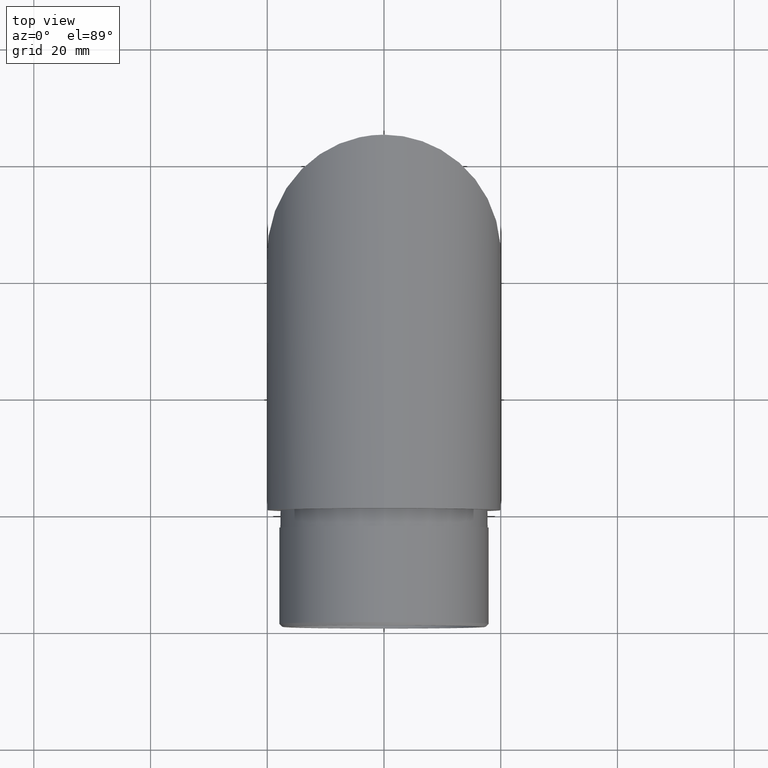
[diagram: clean part render]
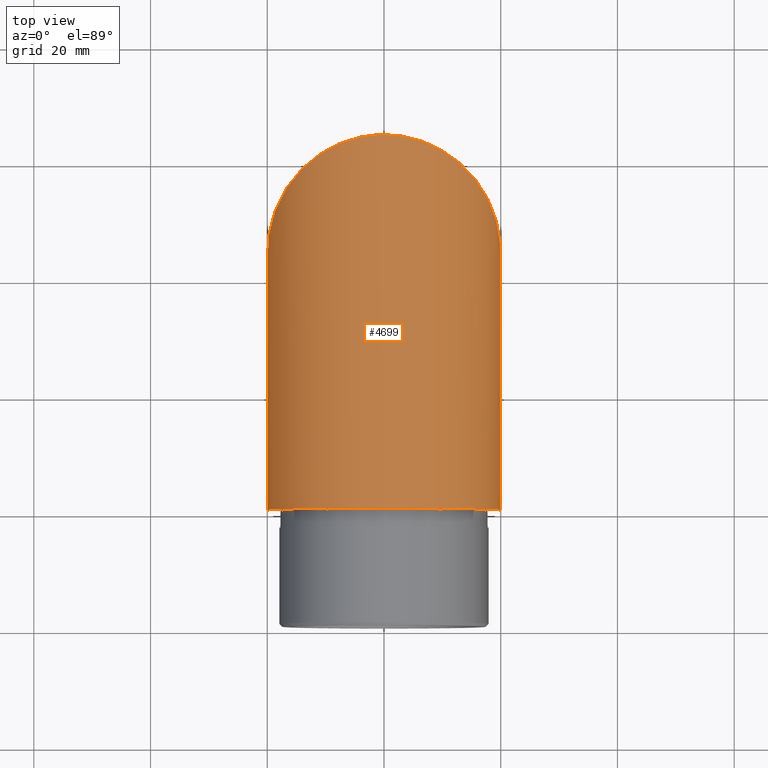
[diagram: same view with one face highlighted and labeled with its STEP entity id]
A machine part, top view. The second image highlights one B-rep face of the part: STEP entity #4699.
In plain terms, the highlighted cylindrical surface (bore or boss wall) has radius 20 mm, axis along (-0, -1, -0).
Its self-contained STEP definition (entity closure, byte-faithful):
#1607 = FACE_OUTER_BOUND ( 'NONE', #12572, .T. ) ;
#2083 = FACE_OUTER_BOUND ( 'NONE', #11233, .T. ) ;
#2101 = CARTESIAN_POINT ( 'NONE',  ( 39.99999999999999300, 23.99999999999992500, -20.00000000000000000 ) ) ;
#2397 = CYLINDRICAL_SURFACE ( 'NONE', #3252, 20.00000000000000000 ) ;
#2893 = VERTEX_POINT ( 'NONE', #8408 ) ;
#3153 = CARTESIAN_POINT ( 'NONE',  ( 0.0000000000000000000, 23.99999999999992500, -20.00000000000000000 ) ) ;
#3252 = AXIS2_PLACEMENT_3D ( 'NONE', #4026, #7009, #10995 ) ;
#3356 = ORIENTED_EDGE ( 'NONE', *, *, #6578, .F. ) ;
#3549 = CARTESIAN_POINT ( 'NONE',  ( 0.0000000000000000000, 0.0000000000000000000, 20.00000000000000000 ) ) ;
#3932 = VERTEX_POINT ( 'NONE', #3549 ) ;
#4026 = CARTESIAN_POINT ( 'NONE',  ( 0.0000000000000000000, 100.5685424949238000, 0.0000000000000000000 ) ) ;
#4541 =( BOUNDED_CURVE ( )  B_SPLINE_CURVE ( 3, ( #7015, #5081, #11903, #6027, #5984, #2101, #3153 ),
 .UNSPECIFIED., .T., .F. ) 
 B_SPLINE_CURVE_WITH_KNOTS ( ( 4, 3, 4 ),
 ( 0.0000000000000000000, 3.141592653589793100, 6.283185307179586200 ),
 .UNSPECIFIED. ) 
 CURVE ( )  GEOMETRIC_REPRESENTATION_ITEM ( )  RATIONAL_B_SPLINE_CURVE ( ( 1.000000000000000000, 0.3333333333333333700, 0.3333333333333333700, 1.000000000000000000, 0.3333333333333333700, 0.3333333333333333700, 1.000000000000000000 ) ) 
 REPRESENTATION_ITEM ( '' )  );
#4699 = ADVANCED_FACE ( 'NONE', ( #2083, #1607 ), #2397, .T. ) ;
#5081 = CARTESIAN_POINT ( 'NONE',  ( -39.99999999999999300, 23.99999999999992500, -20.00000000000000000 ) ) ;
#5984 = CARTESIAN_POINT ( 'NONE',  ( 39.99999999999999300, 64.00000000000007100, 20.00000000000000400 ) ) ;
#6027 = CARTESIAN_POINT ( 'NONE',  ( -2.449293598294706500E-015, 64.00000000000007100, 20.00000000000000000 ) ) ;
#6578 = EDGE_CURVE ( 'NONE', #2893, #2893, #4541, .T. ) ;
#7009 = DIRECTION ( 'NONE',  ( -0.0000000000000000000, -1.000000000000000000, -0.0000000000000000000 ) ) ;
#7015 = CARTESIAN_POINT ( 'NONE',  ( 0.0000000000000000000, 23.99999999999992500, -20.00000000000000000 ) ) ;
#7168 = DIRECTION ( 'NONE',  ( 0.0000000000000000000, 0.0000000000000000000, 1.000000000000000000 ) ) ;
#7571 = CIRCLE ( 'NONE', #9448, 20.00000000000000000 ) ;
#8408 = CARTESIAN_POINT ( 'NONE',  ( 0.0000000000000000000, 23.99999999999992500, -20.00000000000000000 ) ) ;
#9448 = AXIS2_PLACEMENT_3D ( 'NONE', #10896, #11028, #7168 ) ;
#10019 = EDGE_CURVE ( 'NONE', #3932, #3932, #7571, .T. ) ;
#10070 = ORIENTED_EDGE ( 'NONE', *, *, #10019, .T. ) ;
#10896 = CARTESIAN_POINT ( 'NONE',  ( 0.0000000000000000000, 0.0000000000000000000, 0.0000000000000000000 ) ) ;
#10995 = DIRECTION ( 'NONE',  ( 0.0000000000000000000, 0.0000000000000000000, -1.000000000000000000 ) ) ;
#11028 = DIRECTION ( 'NONE',  ( 0.0000000000000000000, 1.000000000000000000, 0.0000000000000000000 ) ) ;
#11233 = EDGE_LOOP ( 'NONE', ( #10070 ) ) ;
#11903 = CARTESIAN_POINT ( 'NONE',  ( -39.99999999999999300, 64.00000000000007100, 19.99999999999999600 ) ) ;
#12572 = EDGE_LOOP ( 'NONE', ( #3356 ) ) ;